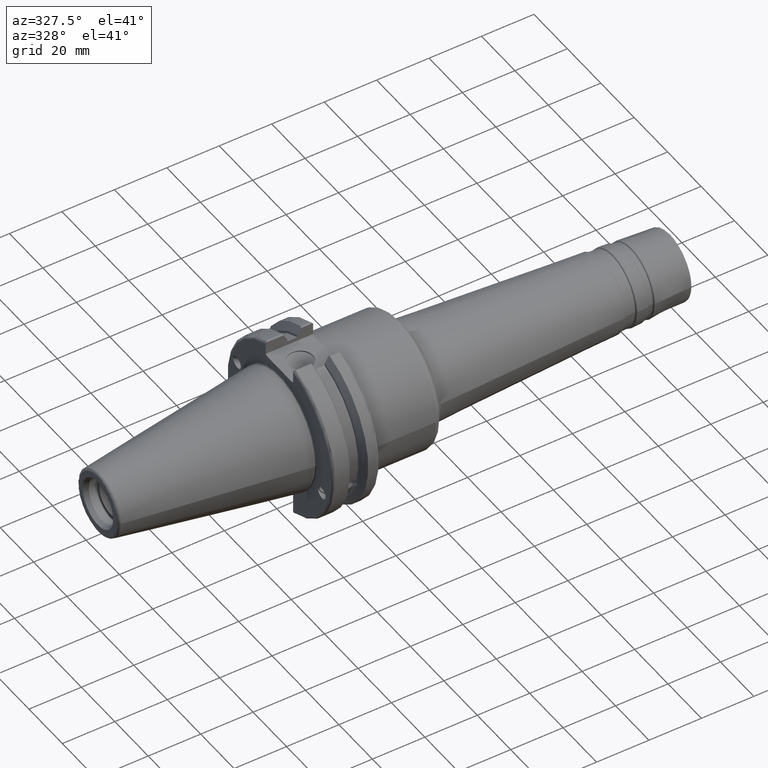
[diagram: clean part render]
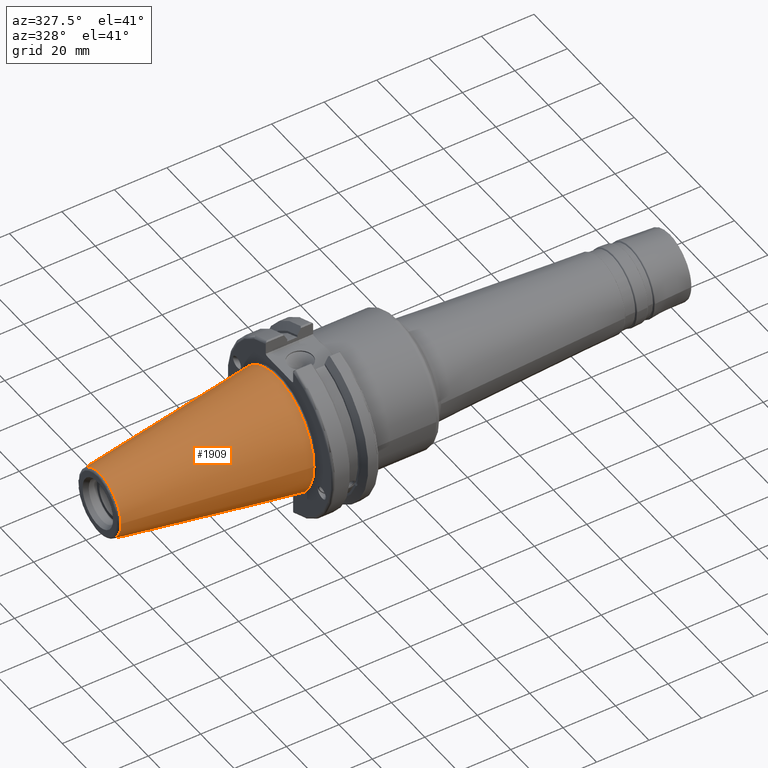
[diagram: same view with one face highlighted and labeled with its STEP entity id]
A machine part, auxiliary view. The second image highlights one B-rep face of the part: STEP entity #1909.
In plain terms, the highlighted conical surface has half-angle 8.297 deg.
Its self-contained STEP definition (entity closure, byte-faithful):
#120=CONICAL_SURFACE('',#2170,17.2484375,0.144812498238939);
#257=FACE_OUTER_BOUND('',#377,.T.);
#377=EDGE_LOOP('',(#1674,#1675,#1676,#1677,#1678));
#489=LINE('',#3722,#587);
#587=VECTOR('',#2720,17.2484375);
#710=CIRCLE('',#2164,12.3966635780937);
#711=CIRCLE('',#2165,12.3966635780937);
#715=CIRCLE('',#2171,22.225);
#908=VERTEX_POINT('',#3709);
#909=VERTEX_POINT('',#3710);
#912=VERTEX_POINT('',#3720);
#1179=EDGE_CURVE('',#908,#909,#710,.T.);
#1180=EDGE_CURVE('',#909,#908,#711,.T.);
#1184=EDGE_CURVE('',#912,#912,#715,.T.);
#1185=EDGE_CURVE('',#912,#909,#489,.T.);
#1674=ORIENTED_EDGE('',*,*,#1184,.F.);
#1675=ORIENTED_EDGE('',*,*,#1185,.T.);
#1676=ORIENTED_EDGE('',*,*,#1179,.F.);
#1677=ORIENTED_EDGE('',*,*,#1180,.F.);
#1678=ORIENTED_EDGE('',*,*,#1185,.F.);
#1909=ADVANCED_FACE('',(#257),#120,.T.);
#2164=AXIS2_PLACEMENT_3D('',#3711,#2704,#2705);
#2165=AXIS2_PLACEMENT_3D('',#3712,#2706,#2707);
#2170=AXIS2_PLACEMENT_3D('',#3719,#2716,#2717);
#2171=AXIS2_PLACEMENT_3D('',#3721,#2718,#2719);
#2704=DIRECTION('center_axis',(-1.,0.,0.));
#2705=DIRECTION('ref_axis',(0.,-1.,3.06161699786838E-17));
#2706=DIRECTION('center_axis',(-1.,0.,0.));
#2707=DIRECTION('ref_axis',(0.,-1.,3.06161699786838E-17));
#2716=DIRECTION('center_axis',(1.,0.,0.));
#2717=DIRECTION('ref_axis',(0.,1.,0.));
#2718=DIRECTION('center_axis',(1.,0.,0.));
#2719=DIRECTION('ref_axis',(0.,0.,-1.));
#2720=DIRECTION('',(-0.989532981063282,0.144306893071729,1.76724974695192E-17));
#3709=CARTESIAN_POINT('',(-67.3943068930717,-1.5181534371019E-15,12.3966635780937));
#3710=CARTESIAN_POINT('',(-67.3943068930718,-12.3966635780937,-1.5181534371019E-15));
#3711=CARTESIAN_POINT('Origin',(-67.3943068930717,0.,-1.89769179637738E-15));
#3712=CARTESIAN_POINT('Origin',(-67.3943068930717,0.,-1.89769179637738E-15));
#3719=CARTESIAN_POINT('Origin',(-34.125,0.,0.));
#3720=CARTESIAN_POINT('',(0.,-22.225,-2.72177751110499E-15));
#3721=CARTESIAN_POINT('Origin',(0.,0.,0.));
#3722=CARTESIAN_POINT('',(-34.125,-17.2484375,-2.11232437746682E-15));